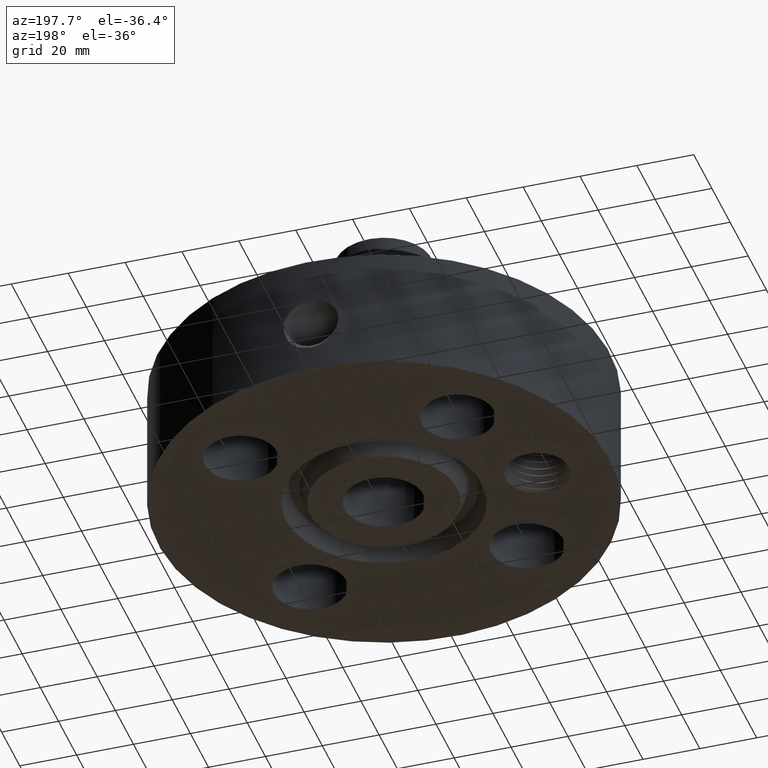
[diagram: clean part render]
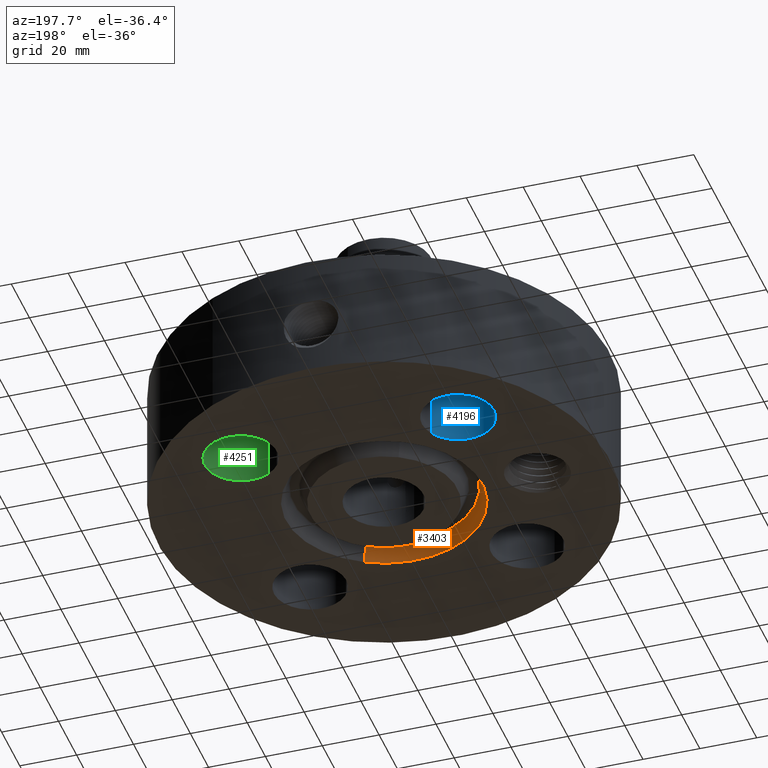
[diagram: same view with three faces highlighted in distinct colors, each labeled with its STEP entity id]
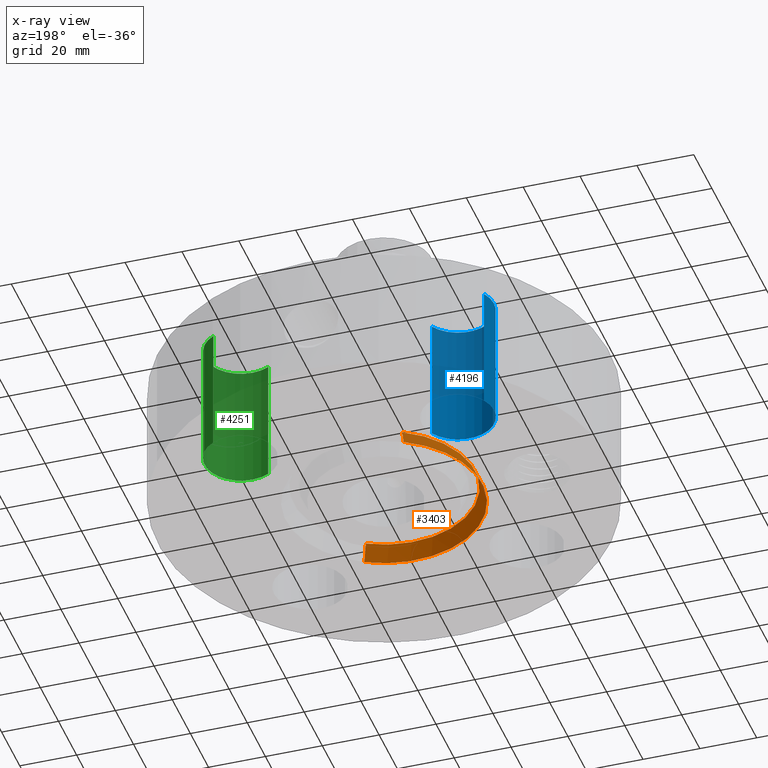
[diagram: x-ray of the same camera — body ghosted, the three highlighted faces saturated]
A machine part, auxiliary view with three faces highlighted in distinct colors.
The next image is the same camera in x-ray (body ghosted, the three faces saturated) — at least one of them is partly hidden behind the body in this view.
Their STEP definitions:

[orange] entity #3403 — the highlighted conical surface has half-angle 23 deg.
#2635=AXIS2_PLACEMENT_3D('Circle Axis2P3D',#2633,#2634,$) ;
#3364=AXIS2_PLACEMENT_3D('Cone Axis2P3D',#3361,#3362,#3363) ;
#3394=AXIS2_PLACEMENT_3D('Circle Axis2P3D',#3392,#3393,$) ;
#2611=CARTESIAN_POINT('Vertex',(0.604622663693,-1.10675436216,0.231721933856)) ;
#2613=CARTESIAN_POINT('Vertex',(-0.604622663693,1.10675436216,0.231721933856)) ;
#2633=CARTESIAN_POINT('Axis2P3D Location',(0.,0.,0.231721933856)) ;
#3361=CARTESIAN_POINT('Axis2P3D Location',(0.,0.,0.231721933856)) ;
#3370=CARTESIAN_POINT('Vertex',(-0.651779019735,1.19307349289,0.)) ;
#3372=CARTESIAN_POINT('Vertex',(0.651779019735,-1.19307349289,0.)) ;
#3375=CARTESIAN_POINT('Line Origine',(0.628200841714,-1.14991392753,0.115860966928)) ;
#3380=CARTESIAN_POINT('Line Origine',(-0.628200841714,1.14991392753,0.115860966928)) ;
#3392=CARTESIAN_POINT('Axis2P3D Location',(0.,0.,0.)) ;
#2634=DIRECTION('Axis2P3D Direction',(0.,0.,0.0393700787402)) ;
#3362=DIRECTION('Axis2P3D Direction',(-0.,-0.,-0.0393700787402)) ;
#3363=DIRECTION('Axis2P3D XDirection',(0.0188750212049,-0.0345504945626,0.)) ;
#3376=DIRECTION('Vector Direction',(0.00737505833565,-0.0134999537303,-0.0362403485611)) ;
#3381=DIRECTION('Vector Direction',(-0.00737505833565,0.0134999537303,-0.0362403485611)) ;
#3393=DIRECTION('Axis2P3D Direction',(0.,0.,-0.0393700787402)) ;
#3377=VECTOR('Line Direction',#3376,0.0393700787402) ;
#3382=VECTOR('Line Direction',#3381,0.0393700787402) ;
#3398=ORIENTED_EDGE('',*,*,#3396,.T.) ;
#3399=ORIENTED_EDGE('',*,*,#3384,.T.) ;
#3400=ORIENTED_EDGE('',*,*,#2637,.T.) ;
#3401=ORIENTED_EDGE('',*,*,#3379,.F.) ;
#3403=ADVANCED_FACE('PartBody',(#3402),#3365,.F.) ;
#2636=CIRCLE('generated circle',#2635,1.26113987472) ;
#3395=CIRCLE('generated circle',#3394,1.35950000001) ;
#3365=CONICAL_SURFACE('Cone',#3364,1.26113987472,0.401425727959) ;
#2637=EDGE_CURVE('',#2614,#2612,#2636,.T.) ;
#3379=EDGE_CURVE('',#3373,#2612,#3378,.F.) ;
#3384=EDGE_CURVE('',#3371,#2614,#3383,.F.) ;
#3396=EDGE_CURVE('',#3373,#3371,#3395,.T.) ;
#3397=EDGE_LOOP('',(#3398,#3399,#3400,#3401)) ;
#3402=FACE_OUTER_BOUND('',#3397,.T.) ;
#3378=LINE('Line',#3375,#3377) ;
#3383=LINE('Line',#3380,#3382) ;
#2612=VERTEX_POINT('',#2611) ;
#2614=VERTEX_POINT('',#2613) ;
#3371=VERTEX_POINT('',#3370) ;
#3373=VERTEX_POINT('',#3372) ;

[blue] entity #4196 — the highlighted cylindrical surface (partial cylindrical patch) has radius 12.7 mm, axis along (-0, 0, -1).
#3003=AXIS2_PLACEMENT_3D('Circle Axis2P3D',#3001,#3002,$) ;
#4169=AXIS2_PLACEMENT_3D('Cylinder Axis2P3D',#4166,#4167,#4168) ;
#4180=AXIS2_PLACEMENT_3D('Circle Axis2P3D',#4178,#4179,$) ;
#2996=CARTESIAN_POINT('Vertex',(-1.94139319097,1.74231467933,1.75000000001)) ;
#2998=CARTESIAN_POINT('Vertex',(-1.06381062908,1.26288914072,1.75000000001)) ;
#3001=CARTESIAN_POINT('Axis2P3D Location',(-1.50260191003,1.50260191003,1.75000000001)) ;
#4166=CARTESIAN_POINT('Axis2P3D Location',(-1.50260191003,1.50260191003,1.74606299213)) ;
#4171=CARTESIAN_POINT('Line Origine',(-1.06381062908,1.26288914072,0.875000000003)) ;
#4175=CARTESIAN_POINT('Vertex',(-1.06381062908,1.26288914072,0.)) ;
#4178=CARTESIAN_POINT('Axis2P3D Location',(-1.50260191003,1.50260191003,0.)) ;
#4182=CARTESIAN_POINT('Vertex',(-1.94139319097,1.74231467933,0.)) ;
#4185=CARTESIAN_POINT('Line Origine',(-1.94139319097,1.74231467933,0.875000000003)) ;
#3002=DIRECTION('Axis2P3D Direction',(0.,0.,-0.0393700787402)) ;
#4167=DIRECTION('Axis2P3D Direction',(-0.,0.,-0.0393700787402)) ;
#4168=DIRECTION('Axis2P3D XDirection',(-0.0345504945626,0.0188750212049,0.)) ;
#4172=DIRECTION('Vector Direction',(0.,0.,-0.0393700787402)) ;
#4179=DIRECTION('Axis2P3D Direction',(-0.,0.,-0.0393700787402)) ;
#4186=DIRECTION('Vector Direction',(0.,0.,-0.0393700787402)) ;
#4173=VECTOR('Line Direction',#4172,0.0393700787402) ;
#4187=VECTOR('Line Direction',#4186,0.0393700787402) ;
#4191=ORIENTED_EDGE('',*,*,#4177,.F.) ;
#4192=ORIENTED_EDGE('',*,*,#4184,.T.) ;
#4193=ORIENTED_EDGE('',*,*,#4189,.T.) ;
#4194=ORIENTED_EDGE('',*,*,#3005,.F.) ;
#4196=ADVANCED_FACE('PartBody',(#4195),#4170,.F.) ;
#3004=CIRCLE('generated circle',#3003,0.500000000002) ;
#4181=CIRCLE('generated circle',#4180,0.500000000002) ;
#4170=CYLINDRICAL_SURFACE('generated cylinder',#4169,0.500000000002) ;
#3005=EDGE_CURVE('',#2999,#2997,#3004,.T.) ;
#4177=EDGE_CURVE('',#4176,#2999,#4174,.F.) ;
#4184=EDGE_CURVE('',#4176,#4183,#4181,.T.) ;
#4189=EDGE_CURVE('',#4183,#2997,#4188,.F.) ;
#4190=EDGE_LOOP('',(#4191,#4192,#4193,#4194)) ;
#4195=FACE_OUTER_BOUND('',#4190,.T.) ;
#4174=LINE('Line',#4171,#4173) ;
#4188=LINE('Line',#4185,#4187) ;
#2997=VERTEX_POINT('',#2996) ;
#2999=VERTEX_POINT('',#2998) ;
#4176=VERTEX_POINT('',#4175) ;
#4183=VERTEX_POINT('',#4182) ;

[green] entity #4251 — the highlighted cylindrical surface (partial cylindrical patch) has radius 12.7 mm, axis along (0, 0, -1).
#3012=AXIS2_PLACEMENT_3D('Circle Axis2P3D',#3010,#3011,$) ;
#4212=AXIS2_PLACEMENT_3D('Cylinder Axis2P3D',#4209,#4210,#4211) ;
#4242=AXIS2_PLACEMENT_3D('Circle Axis2P3D',#4240,#4241,$) ;
#3010=CARTESIAN_POINT('Axis2P3D Location',(1.50260191003,1.50260191003,1.75000000001)) ;
#3014=CARTESIAN_POINT('Vertex',(1.74231467933,1.94139319097,1.75000000001)) ;
#3016=CARTESIAN_POINT('Vertex',(1.26288914072,1.06381062908,1.75000000001)) ;
#4209=CARTESIAN_POINT('Axis2P3D Location',(1.50260191003,1.50260191003,1.74606299213)) ;
#4214=CARTESIAN_POINT('Line Origine',(1.26288914072,1.06381062908,0.875000000003)) ;
#4218=CARTESIAN_POINT('Vertex',(1.26288914072,1.06381062908,0.)) ;
#4225=CARTESIAN_POINT('Vertex',(1.74231467933,1.94139319097,0.)) ;
#4228=CARTESIAN_POINT('Line Origine',(1.74231467933,1.94139319097,0.875000000003)) ;
#4240=CARTESIAN_POINT('Axis2P3D Location',(1.50260191003,1.50260191003,0.)) ;
#3011=DIRECTION('Axis2P3D Direction',(0.,0.,-0.0393700787402)) ;
#4210=DIRECTION('Axis2P3D Direction',(0.,0.,-0.0393700787402)) ;
#4211=DIRECTION('Axis2P3D XDirection',(0.0188750212049,0.0345504945626,0.)) ;
#4215=DIRECTION('Vector Direction',(0.,0.,-0.0393700787402)) ;
#4229=DIRECTION('Vector Direction',(0.,0.,-0.0393700787402)) ;
#4241=DIRECTION('Axis2P3D Direction',(0.,0.,-0.0393700787402)) ;
#4216=VECTOR('Line Direction',#4215,0.0393700787402) ;
#4230=VECTOR('Line Direction',#4229,0.0393700787402) ;
#4246=ORIENTED_EDGE('',*,*,#4232,.F.) ;
#4247=ORIENTED_EDGE('',*,*,#4244,.T.) ;
#4248=ORIENTED_EDGE('',*,*,#4220,.T.) ;
#4249=ORIENTED_EDGE('',*,*,#3018,.F.) ;
#4251=ADVANCED_FACE('PartBody',(#4250),#4213,.F.) ;
#3013=CIRCLE('generated circle',#3012,0.500000000002) ;
#4243=CIRCLE('generated circle',#4242,0.500000000002) ;
#4213=CYLINDRICAL_SURFACE('generated cylinder',#4212,0.500000000002) ;
#3018=EDGE_CURVE('',#3015,#3017,#3013,.T.) ;
#4220=EDGE_CURVE('',#4219,#3017,#4217,.F.) ;
#4232=EDGE_CURVE('',#4226,#3015,#4231,.F.) ;
#4244=EDGE_CURVE('',#4226,#4219,#4243,.T.) ;
#4245=EDGE_LOOP('',(#4246,#4247,#4248,#4249)) ;
#4250=FACE_OUTER_BOUND('',#4245,.T.) ;
#4217=LINE('Line',#4214,#4216) ;
#4231=LINE('Line',#4228,#4230) ;
#3015=VERTEX_POINT('',#3014) ;
#3017=VERTEX_POINT('',#3016) ;
#4219=VERTEX_POINT('',#4218) ;
#4226=VERTEX_POINT('',#4225) ;